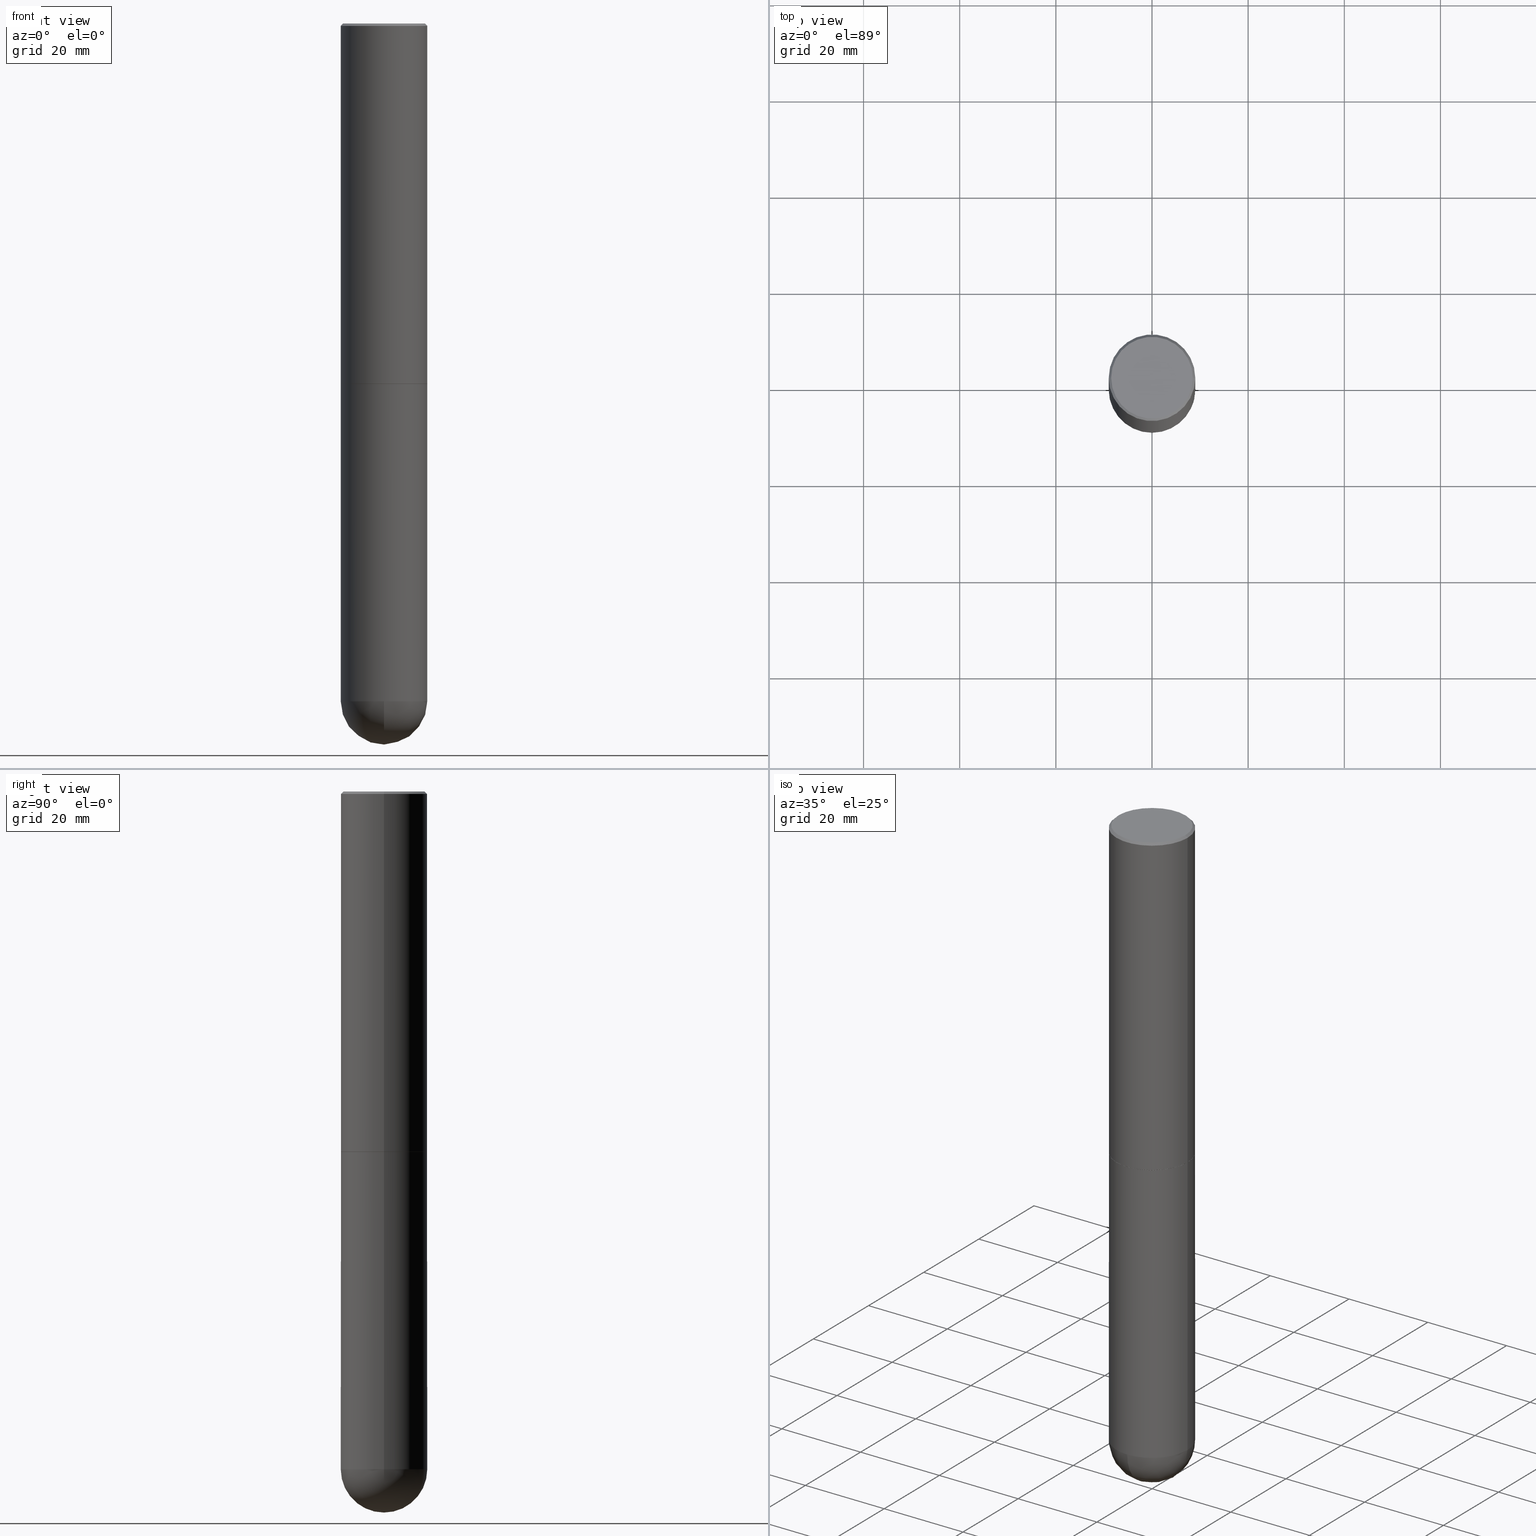
[diagram: canonical four-view strip — front | top / right | iso, engineering-drawing reading convention]
A machine part, canonical four-view strip (front | top / right | iso — engineering-drawing reading convention). The complete STEP part file that produces these views, byte-faithful:
ISO-10303-21;
HEADER;
FILE_DESCRIPTION (( 'STEP AP203' ),
    '1' );
FILE_NAME ('49606.STEP',
    '2024-04-10T12:30:01',
    ( '' ),
    ( '' ),
    'SwSTEP 2.0',
    'SolidWorks 2023',
    '' );
FILE_SCHEMA (( 'CONFIG_CONTROL_DESIGN' ));
ENDSEC;

DATA;
#1 = ORIENTED_EDGE ( 'NONE', *, *, #145, .T. ) ;
#2 = APPROVAL_STATUS ( 'not_yet_approved' ) ;
#3 = AXIS2_PLACEMENT_3D ( 'NONE', #348, #240, #249 ) ;
#4 = PERSON_AND_ORGANIZATION ( #169, #167 ) ;
#5 = ORIENTED_EDGE ( 'NONE', *, *, #222, .T. ) ;
#6 = CIRCLE ( 'NONE', #105, 0.3543499999999999983 ) ;
#7 = ADVANCED_FACE ( 'NONE', ( #298 ), #12, .T. ) ;
#8 = CIRCLE ( 'NONE', #152, 0.3543499999999999983 ) ;
#9 = CC_DESIGN_PERSON_AND_ORGANIZATION_ASSIGNMENT ( #135, #386, ( #326 ) ) ;
#10 = ORIENTED_EDGE ( 'NONE', *, *, #351, .F. ) ;
#11 = ORIENTED_EDGE ( 'NONE', *, *, #162, .T. ) ;
#12 = CONICAL_SURFACE ( 'NONE', #318, 0.3533499999999999974, 0.7853981633974824739 ) ;
#13 = VERTEX_POINT ( 'NONE', #363 ) ;
#14 = DIRECTION ( 'NONE',  ( -2.445468806185136597E-29, 3.491481338843145583E-15, 1.000000000000000000 ) ) ;
#15 = DIRECTION ( 'NONE',  ( -2.445468806185136597E-29, 3.491481338843145583E-15, 1.000000000000000000 ) ) ;
#16 = CARTESIAN_POINT ( 'NONE',  ( 0.3533499999999999974, -1.277672681136259888E-14, -2.952700000000000546 ) ) ;
#17 = CARTESIAN_POINT ( 'NONE',  ( -0.3533499999999999974, -7.793295738045619809E-15, -2.952700000000000546 ) ) ;
#18 = EDGE_CURVE ( 'NONE', #112, #49, #343, .T. ) ;
#19 = AXIS2_PLACEMENT_3D ( 'NONE', #258, #381, #225 ) ;
#20 = CIRCLE ( 'NONE', #19, 0.3543500000000002204 ) ;
#21 = DIRECTION ( 'NONE',  ( 6.982962677686265922E-15, 1.000000000000000000, -3.083784951222533328E-15 ) ) ;
#22 = EDGE_CURVE ( 'NONE', #230, #85, #356, .T. ) ;
#23 = CARTESIAN_POINT ( 'NONE',  ( 0.3343500000000000916, -2.397327298921059104E-15, -7.683322482179085543E-17 ) ) ;
#24 = DIRECTION ( 'NONE',  ( -2.445468806185136597E-29, 3.491481338843145583E-15, 1.000000000000000000 ) ) ;
#25 = CARTESIAN_POINT ( 'NONE',  ( -0.3543499999999999983, 2.404583198061265396E-15, -0.02000000000000008021 ) ) ;
#26 = EDGE_LOOP ( 'NONE', ( #362, #204 ) ) ;
#27 = APPLICATION_CONTEXT ( 'configuration controlled 3d designs of mechanical parts and assemblies' ) ;
#28 = DIRECTION ( 'NONE',  ( -2.445468806185136597E-29, 3.491481338843145583E-15, 1.000000000000000000 ) ) ;
#29 = EDGE_CURVE ( 'NONE', #263, #80, #273, .T. ) ;
#30 = DIRECTION ( 'NONE',  ( -1.000000000000000000, 6.982962677686265922E-15, -4.876176775795935793E-29 ) ) ;
#31 = EDGE_CURVE ( 'NONE', #49, #382, #62, .T. ) ;
#32 = PERSON_AND_ORGANIZATION ( #169, #167 ) ;
#33 = CARTESIAN_POINT ( 'NONE',  ( 2.474412824838200480E-15, 0.3543499999999896732, -2.952700000000000990 ) ) ;
#34 = APPROVAL_ROLE ( '' ) ;
#35 = CALENDAR_DATE ( 2024, 10, 4 ) ;
#36 = ORIENTED_EDGE ( 'NONE', *, *, #171, .T. ) ;
#37 = DATE_AND_TIME ( #35, #227 ) ;
#38 = AXIS2_PLACEMENT_3D ( 'NONE', #153, #308, #244 ) ;
#39 =( GEOMETRIC_REPRESENTATION_CONTEXT ( 3 ) GLOBAL_UNCERTAINTY_ASSIGNED_CONTEXT ( ( #132 ) ) GLOBAL_UNIT_ASSIGNED_CONTEXT ( ( #257, #189, #129 ) ) REPRESENTATION_CONTEXT ( 'NONE', 'WORKASPACE' ) );
#40 = ORIENTED_EDGE ( 'NONE', *, *, #385, .F. ) ;
#41 = PERSON_AND_ORGANIZATION_ROLE ( 'classification_officer' ) ;
#42 = APPLICATION_CONTEXT ( 'configuration controlled 3d designs of mechanical parts and assemblies' ) ;
#43 = PRODUCT ( '49606', '49606', '', ( #411 ) ) ;
#44 = ADVANCED_FACE ( 'NONE', ( #123 ), #224, .T. ) ;
#45 = CLOSED_SHELL ( 'NONE', ( #321, #47, #125, #279, #106, #7, #303, #190 ) ) ;
#46 = ORIENTED_EDGE ( 'NONE', *, *, #351, .T. ) ;
#47 = ADVANCED_FACE ( 'NONE', ( #221 ), #214, .T. ) ;
#48 = VERTEX_POINT ( 'NONE', #17 ) ;
#49 = VERTEX_POINT ( 'NONE', #187 ) ;
#50 = AXIS2_PLACEMENT_3D ( 'NONE', #117, #237, #335 ) ;
#51 = CYLINDRICAL_SURFACE ( 'NONE', #296, 0.3543499999999999983 ) ;
#52 = ORIENTED_EDGE ( 'NONE', *, *, #119, .T. ) ;
#53 = DIRECTION ( 'NONE',  ( -0.7071067811865461294, 2.468850131082242072E-15, -0.7071067811865489050 ) ) ;
#54 = CARTESIAN_POINT ( 'NONE',  ( 1.324404438554073486E-28, -1.985591900225917417E-14, -5.551149999999999807 ) ) ;
#55 = EDGE_CURVE ( 'NONE', #297, #188, #408, .T. ) ;
#56 = DIRECTION ( 'NONE',  ( 1.000000000000000000, -6.982962677686261189E-15, 0.000000000000000000 ) ) ;
#57 = DIRECTION ( 'NONE',  ( 1.000000000000000000, -6.982962677686266711E-15, 4.876176775795935793E-29 ) ) ;
#58 = CC_DESIGN_APPROVAL ( #63, ( #136 ) ) ;
#59 = DIRECTION ( 'NONE',  ( 1.000000000000000000, -6.982962677686266711E-15, 0.000000000000000000 ) ) ;
#60 = DIRECTION ( 'NONE',  ( -1.000000000000000000, 7.105427357601001070E-15, -4.926315508542082329E-29 ) ) ;
#61 = DIRECTION ( 'NONE',  ( 1.000000000000000000, -6.982962677686265922E-15, 0.000000000000000000 ) ) ;
#62 = LINE ( 'NONE', #89, #377 ) ;
#63 = APPROVAL ( #259, 'UNSPECIFIED' ) ;
#64 = PERSON_AND_ORGANIZATION ( #169, #167 ) ;
#65 = ORIENTED_EDGE ( 'NONE', *, *, #119, .F. ) ;
#66 = DIRECTION ( 'NONE',  ( -2.445468806185136877E-29, 3.491481338843145188E-15, 1.000000000000000000 ) ) ;
#67 = DIRECTION ( 'NONE',  ( -2.445468806185136597E-29, 3.491481338843145583E-15, 1.000000000000000000 ) ) ;
#68 = CONICAL_SURFACE ( 'NONE', #383, 0.3543499999999999983, 0.7853981633974463916 ) ;
#69 = CONICAL_SURFACE ( 'NONE', #389, 0.3533499999999999974, 0.7853981633974824739 ) ;
#70 = PERSON_AND_ORGANIZATION ( #169, #167 ) ;
#71 = CC_DESIGN_PERSON_AND_ORGANIZATION_ASSIGNMENT ( #166, #137, ( #326 ) ) ;
#72 = PERSON_AND_ORGANIZATION ( #169, #167 ) ;
#73 = EDGE_LOOP ( 'NONE', ( #360, #1, #142, #116 ) ) ;
#74 = AXIS2_PLACEMENT_3D ( 'NONE', #94, #274, #219 ) ;
#75 = CC_DESIGN_APPROVAL ( #410, ( #326 ) ) ;
#76 = CC_DESIGN_DATE_AND_TIME_ASSIGNMENT ( #104, #228, ( #139 ) ) ;
#77 = MANIFOLD_SOLID_BREP ( 'Body-Move/Copy2[1]', #392 ) ;
#78 = DIMENSIONAL_EXPONENTS ( 1.000000000000000000, 0.000000000000000000, 0.000000000000000000, 0.000000000000000000, 0.000000000000000000, 0.000000000000000000, 0.000000000000000000 ) ;
#79 = VECTOR ( 'NONE', #101, 39.37007874015748143 ) ;
#80 = VERTEX_POINT ( 'NONE', #23 ) ;
#81 = AXIS2_PLACEMENT_3D ( 'NONE', #370, #209, #400 ) ;
#82 = ORIENTED_EDGE ( 'NONE', *, *, #171, .F. ) ;
#83 = CARTESIAN_POINT ( 'NONE',  ( 1.357516416345461774E-28, -1.938173663411912545E-14, -5.551149999999999807 ) ) ;
#84 = FACE_OUTER_BOUND ( 'NONE', #302, .T. ) ;
#85 = VERTEX_POINT ( 'NONE', #380 ) ;
#86 = AXIS2_PLACEMENT_3D ( 'NONE', #403, #14, #124 ) ;
#87 = ADVANCED_FACE ( 'NONE', ( #409 ), #150, .F. ) ;
#88 = DIRECTION ( 'NONE',  ( -2.445468806185136597E-29, 3.491481338843145583E-15, 1.000000000000000000 ) ) ;
#89 = CARTESIAN_POINT ( 'NONE',  ( 0.3543499999999999983, -2.474412824838128694E-15, 1.727873240503289749E-29 ) ) ;
#90 = EDGE_CURVE ( 'NONE', #48, #211, #338, .T. ) ;
#91 = FACE_OUTER_BOUND ( 'NONE', #26, .T. ) ;
#92 = CYLINDRICAL_SURFACE ( 'NONE', #234, 0.3543500000000002204 ) ;
#93 = CARTESIAN_POINT ( 'NONE',  ( 7.220735744022853640E-29, -1.030929694920215659E-14, -2.952700000000000546 ) ) ;
#94 = CARTESIAN_POINT ( 'NONE',  ( 7.218290275216666916E-29, -1.030580546786331359E-14, -2.951700000000000212 ) ) ;
#95 = CC_DESIGN_APPROVAL ( #207, ( #139 ) ) ;
#96 = DIRECTION ( 'NONE',  ( -2.445468806185136597E-29, 3.491481338843145583E-15, 1.000000000000000000 ) ) ;
#97 = DIRECTION ( 'NONE',  ( -2.445468806185136597E-29, 3.491481338843145583E-15, 1.000000000000000000 ) ) ;
#98 = APPROVAL_DATE_TIME ( #247, #63 ) ;
#99 = ORIENTED_EDGE ( 'NONE', *, *, #174, .F. ) ;
#100 = PERSON_AND_ORGANIZATION_ROLE ( 'design_owner' ) ;
#101 = DIRECTION ( 'NONE',  ( -2.445468806185136877E-29, 3.491481338843145188E-15, 1.000000000000000000 ) ) ;
#102 = LINE ( 'NONE', #412, #388 ) ;
#103 = ORIENTED_EDGE ( 'NONE', *, *, #162, .F. ) ;
#104 = DATE_AND_TIME ( #223, #353 ) ;
#105 = AXIS2_PLACEMENT_3D ( 'NONE', #155, #120, #368 ) ;
#106 = ADVANCED_FACE ( 'NONE', ( #404 ), #92, .T. ) ;
#107 = AXIS2_PLACEMENT_3D ( 'NONE', #276, #301, #248 ) ;
#108 = CC_DESIGN_PERSON_AND_ORGANIZATION_ASSIGNMENT ( #357, #41, ( #136 ) ) ;
#109 = EDGE_LOOP ( 'NONE', ( #175, #285, #312, #65 ) ) ;
#110 = SECURITY_CLASSIFICATION_LEVEL ( 'unclassified' ) ;
#111 = ADVANCED_BREP_SHAPE_REPRESENTATION ( '49606', ( #77, #206, #143 ), #39 ) ;
#112 = VERTEX_POINT ( 'NONE', #161 ) ;
#113 = APPROVAL_PERSON_ORGANIZATION ( #64, #63, #350 ) ;
#114 = ORIENTED_EDGE ( 'NONE', *, *, #18, .T. ) ;
#115 = CIRCLE ( 'NONE', #253, 0.3533499999999999974 ) ;
#116 = ORIENTED_EDGE ( 'NONE', *, *, #55, .F. ) ;
#117 = CARTESIAN_POINT ( 'NONE',  ( 4.890937612370293302E-31, -6.982962677686318726E-17, -0.02000000000000008021 ) ) ;
#118 = ORIENTED_EDGE ( 'NONE', *, *, #287, .T. ) ;
#119 = EDGE_CURVE ( 'NONE', #211, #85, #333, .T. ) ;
#120 = DIRECTION ( 'NONE',  ( -2.445468806185136597E-29, 3.491481338843145583E-15, 1.000000000000000000 ) ) ;
#121 = CARTESIAN_POINT ( 'NONE',  ( -0.3543499999999999428, -1.232770860749472642E-14, -5.551149999999999807 ) ) ;
#122 = CARTESIAN_POINT ( 'NONE',  ( 1.357516416345461774E-28, -1.938173663411912545E-14, -5.551149999999999807 ) ) ;
#123 = FACE_OUTER_BOUND ( 'NONE', #265, .T. ) ;
#124 = DIRECTION ( 'NONE',  ( 1.000000000000000000, -6.982962677686268288E-15, 0.000000000000000000 ) ) ;
#125 = ADVANCED_FACE ( 'NONE', ( #314 ), #68, .T. ) ;
#126 = CARTESIAN_POINT ( 'NONE',  ( 0.000000000000000000, 0.000000000000000000, 0.000000000000000000 ) ) ;
#127 = DIRECTION ( 'NONE',  ( 1.000000000000000000, -6.982962677686267499E-15, 4.875777752381876907E-29 ) ) ;
#128 = CARTESIAN_POINT ( 'NONE',  ( 4.890937612370293302E-31, -6.982962677686318726E-17, -0.02000000000000008021 ) ) ;
#129 =( NAMED_UNIT ( * ) SI_UNIT ( $, .STERADIAN. ) SOLID_ANGLE_UNIT ( ) );
#130 = LINE ( 'NONE', #311, #79 ) ;
#131 = APPLICATION_PROTOCOL_DEFINITION ( 'international standard', 'config_control_design', 1994, #42 ) ;
#132 = UNCERTAINTY_MEASURE_WITH_UNIT (LENGTH_MEASURE( 1.000000000000000082E-05 ), #257, 'distance_accuracy_value', 'NONE');
#133 = DIRECTION ( 'NONE',  ( -1.000000000000000000, 6.982962677686265922E-15, -4.876176775795935793E-29 ) ) ;
#134 = COORDINATED_UNIVERSAL_TIME_OFFSET ( 5, 0, .BEHIND. ) ;
#135 = PERSON_AND_ORGANIZATION ( #169, #167 ) ;
#136 = SECURITY_CLASSIFICATION ( '', '', #110 ) ;
#137 = PERSON_AND_ORGANIZATION_ROLE ( 'design_supplier' ) ;
#138 = ORIENTED_EDGE ( 'NONE', *, *, #385, .T. ) ;
#139 = PRODUCT_DEFINITION ( 'UNKNOWN', '', #326, #283 ) ;
#140 = VECTOR ( 'NONE', #154, 39.37007874015748143 ) ;
#141 = ORIENTED_EDGE ( 'NONE', *, *, #334, .T. ) ;
#142 = ORIENTED_EDGE ( 'NONE', *, *, #287, .F. ) ;
#143 = AXIS2_PLACEMENT_3D ( 'NONE', #328, #354, #291 ) ;
#144 = VERTEX_POINT ( 'NONE', #216 ) ;
#145 = EDGE_CURVE ( 'NONE', #13, #112, #295, .T. ) ;
#146 = CC_DESIGN_PERSON_AND_ORGANIZATION_ASSIGNMENT ( #72, #100, ( #43 ) ) ;
#147 = CARTESIAN_POINT ( 'NONE',  ( 7.220735744022853640E-29, -1.030929694920215659E-14, -2.952700000000000546 ) ) ;
#148 = ORIENTED_EDGE ( 'NONE', *, *, #55, .T. ) ;
#149 = DIRECTION ( 'NONE',  ( -2.438088387897960049E-29, 3.491481338843145188E-15, 1.000000000000000000 ) ) ;
#150 = PLANE ( 'NONE',  #151 ) ;
#151 = AXIS2_PLACEMENT_3D ( 'NONE', #33, #282, #30 ) ;
#152 = AXIS2_PLACEMENT_3D ( 'NONE', #183, #347, #61 ) ;
#153 = CARTESIAN_POINT ( 'NONE',  ( 1.357516416345461774E-28, -1.938173663411912545E-14, -5.551149999999999807 ) ) ;
#154 = DIRECTION ( 'NONE',  ( -2.445468806185136877E-29, 3.491481338843145188E-15, 1.000000000000000000 ) ) ;
#155 = CARTESIAN_POINT ( 'NONE',  ( 7.220735744022852519E-29, -1.030929694920215502E-14, -2.952700000000000102 ) ) ;
#156 = CARTESIAN_POINT ( 'NONE',  ( 0.3543499999999999983, -2.500847092287205690E-15, -0.02000000000000008021 ) ) ;
#157 = AXIS2_PLACEMENT_3D ( 'NONE', #406, #378, #133 ) ;
#158 = ORIENTED_EDGE ( 'NONE', *, *, #293, .T. ) ;
#159 = AXIS2_PLACEMENT_3D ( 'NONE', #310, #24, #127 ) ;
#160 = LENGTH_MEASURE_WITH_UNIT ( LENGTH_MEASURE( 0.02539999999999999897 ), #320 );
#161 = CARTESIAN_POINT ( 'NONE',  ( -2.517808184165781285E-15, -0.3543500000000196493, -5.551149999999998919 ) ) ;
#162 = EDGE_CURVE ( 'NONE', #80, #144, #191, .T. ) ;
#163 = COORDINATED_UNIVERSAL_TIME_OFFSET ( 5, 0, .BEHIND. ) ;
#164 = APPROVAL_DATE_TIME ( #37, #410 ) ;
#165 = AXIS2_PLACEMENT_3D ( 'NONE', #246, #97, #305 ) ;
#166 = PERSON_AND_ORGANIZATION ( #169, #167 ) ;
#167 = ORGANIZATION ( 'UNSPECIFIED', 'UNSPECIFIED', '' ) ;
#168 = DIRECTION ( 'NONE',  ( 0.7071067811865715536, -2.468850131082509496E-15, 0.7071067811865232589 ) ) ;
#169 = PERSON ( 'UNSPECIFIED', 'UNSPECIFIED', 'UNSPECIFIED', ('UNSPECIFIED'), ('UNSPECIFIED'), ('UNSPECIFIED') ) ;
#170 = APPROVAL_PERSON_ORGANIZATION ( #32, #207, #34 ) ;
#171 = EDGE_CURVE ( 'NONE', #188, #185, #130, .T. ) ;
#172 = VERTEX_POINT ( 'NONE', #25 ) ;
#173 = ORIENTED_EDGE ( 'NONE', *, *, #395, .F. ) ;
#174 = EDGE_CURVE ( 'NONE', #85, #144, #317, .T. ) ;
#175 = ORIENTED_EDGE ( 'NONE', *, *, #90, .F. ) ;
#176 = FACE_OUTER_BOUND ( 'NONE', #300, .T. ) ;
#177 = ORIENTED_EDGE ( 'NONE', *, *, #29, .T. ) ;
#178 = CARTESIAN_POINT ( 'NONE',  ( -0.3543500000000004424, -2.670009363154166740E-15, -2.951700000000000212 ) ) ;
#179 = CARTESIAN_POINT ( 'NONE',  ( 0.000000000000000000, 0.000000000000000000, 0.000000000000000000 ) ) ;
#180 = DIRECTION ( 'NONE',  ( 1.000000000000000000, -6.982962677686265922E-15, 4.876176775795935793E-29 ) ) ;
#181 = CARTESIAN_POINT ( 'NONE',  ( 0.3543500000000002204, -2.474412824838130272E-15, 1.727873240503290870E-29 ) ) ;
#182 = LOCAL_TIME ( 8, 30, 1.000000000000000000, #163 ) ;
#183 = CARTESIAN_POINT ( 'NONE',  ( 7.220735744022852519E-29, -1.030929694920215502E-14, -2.952700000000000102 ) ) ;
#184 = DIRECTION ( 'NONE',  ( -7.105427357601001070E-15, -1.000000000000000000, 0.000000000000000000 ) ) ;
#185 = VERTEX_POINT ( 'NONE', #284 ) ;
#186 = FACE_OUTER_BOUND ( 'NONE', #73, .T. ) ;
#187 = CARTESIAN_POINT ( 'NONE',  ( 0.3543499999999999428, -1.731992961649876932E-14, -5.551149999999999807 ) ) ;
#188 = VERTEX_POINT ( 'NONE', #121 ) ;
#189 =( NAMED_UNIT ( * ) PLANE_ANGLE_UNIT ( ) SI_UNIT ( $, .RADIAN. ) );
#190 = ADVANCED_FACE ( 'NONE', ( #369 ), #280, .F. ) ;
#191 = LINE ( 'NONE', #156, #210 ) ;
#192 = AXIS2_PLACEMENT_3D ( 'NONE', #126, #255, #277 ) ;
#193 = CIRCLE ( 'NONE', #358, 0.3543499999999999428 ) ;
#194 = CARTESIAN_POINT ( 'NONE',  ( -0.3543500000000002204, 2.517808184165916574E-15, -1.743024649231827187E-29 ) ) ;
#195 = ORIENTED_EDGE ( 'NONE', *, *, #29, .F. ) ;
#196 = APPROVAL_STATUS ( 'not_yet_approved' ) ;
#197 = EDGE_CURVE ( 'NONE', #13, #297, #20, .T. ) ;
#198 = ORIENTED_EDGE ( 'NONE', *, *, #202, .F. ) ;
#199 = CALENDAR_DATE ( 2024, 10, 4 ) ;
#200 = ORIENTED_EDGE ( 'NONE', *, *, #242, .T. ) ;
#201 = CONICAL_SURFACE ( 'NONE', #81, 0.3543499999999999983, 0.7853981633974463916 ) ;
#202 = EDGE_CURVE ( 'NONE', #263, #172, #102, .T. ) ;
#203 = LOCAL_TIME ( 8, 30, 1.000000000000000000, #281 ) ;
#204 = ORIENTED_EDGE ( 'NONE', *, *, #390, .F. ) ;
#205 = EDGE_LOOP ( 'NONE', ( #177, #158 ) ) ;
#206 = MANIFOLD_SOLID_BREP ( 'Body-Move/Copy2[2]', #45 ) ;
#207 = APPROVAL ( #2, 'UNSPECIFIED' ) ;
#208 = DIRECTION ( 'NONE',  ( -2.445468806185136597E-29, 3.491481338843145583E-15, 1.000000000000000000 ) ) ;
#209 = DIRECTION ( 'NONE',  ( 2.445468806185136597E-29, -3.491481338843145583E-15, -1.000000000000000000 ) ) ;
#210 = VECTOR ( 'NONE', #402, 39.37007874015748143 ) ;
#211 = VERTEX_POINT ( 'NONE', #178 ) ;
#212 = CIRCLE ( 'NONE', #50, 0.3543499999999999983 ) ;
#213 = FACE_OUTER_BOUND ( 'NONE', #330, .T. ) ;
#214 = CYLINDRICAL_SURFACE ( 'NONE', #192, 0.3543500000000002204 ) ;
#215 = CARTESIAN_POINT ( 'NONE',  ( 1.324404438554073486E-28, -1.985591900225917417E-14, -5.551149999999999807 ) ) ;
#216 = CARTESIAN_POINT ( 'NONE',  ( 0.3543499999999999983, -2.500847092287205690E-15, -0.02000000000000008021 ) ) ;
#217 = EDGE_CURVE ( 'NONE', #230, #48, #352, .T. ) ;
#218 = PLANE ( 'NONE',  #361 ) ;
#219 = DIRECTION ( 'NONE',  ( 1.000000000000000000, -6.982962677686268288E-15, 0.000000000000000000 ) ) ;
#220 = DIRECTION ( 'NONE',  ( 1.000000000000000000, -6.982962677686267499E-15, 0.000000000000000000 ) ) ;
#221 = FACE_OUTER_BOUND ( 'NONE', #336, .T. ) ;
#222 = EDGE_CURVE ( 'NONE', #382, #185, #6, .T. ) ;
#223 = CALENDAR_DATE ( 2024, 10, 4 ) ;
#224 = CYLINDRICAL_SURFACE ( 'NONE', #165, 0.3543499999999999983 ) ;
#225 = DIRECTION ( 'NONE',  ( 6.982962677686265133E-15, 1.000000000000000000, 0.000000000000000000 ) ) ;
#226 = EDGE_LOOP ( 'NONE', ( #238, #11, #138, #198 ) ) ;
#227 = LOCAL_TIME ( 8, 30, 1.000000000000000000, #322 ) ;
#228 = DATE_TIME_ROLE ( 'creation_date' ) ;
#229 = PERSON_AND_ORGANIZATION_ROLE ( 'creator' ) ;
#230 = VERTEX_POINT ( 'NONE', #16 ) ;
#231 = PRODUCT_RELATED_PRODUCT_CATEGORY ( 'detail', '', ( #43 ) ) ;
#232 = DATE_AND_TIME ( #199, #182 ) ;
#233 = EDGE_LOOP ( 'NONE', ( #5, #394 ) ) ;
#234 = AXIS2_PLACEMENT_3D ( 'NONE', #179, #67, #57 ) ;
#235 = ORIENTED_EDGE ( 'NONE', *, *, #90, .T. ) ;
#236 = ORIENTED_EDGE ( 'NONE', *, *, #18, .F. ) ;
#237 = DIRECTION ( 'NONE',  ( -2.445468806185136597E-29, 3.491481338843145583E-15, 1.000000000000000000 ) ) ;
#238 = ORIENTED_EDGE ( 'NONE', *, *, #293, .F. ) ;
#239 = DIRECTION ( 'NONE',  ( 1.000000000000000000, -6.982962677686267499E-15, 0.000000000000000000 ) ) ;
#240 = DIRECTION ( 'NONE',  ( -2.445468806185136597E-29, 3.491481338843145583E-15, 1.000000000000000000 ) ) ;
#241 = CIRCLE ( 'NONE', #159, 0.3343500000000000916 ) ;
#242 = EDGE_CURVE ( 'NONE', #49, #297, #262, .T. ) ;
#243 = SPHERICAL_SURFACE ( 'NONE', #261, 0.3543500000000002204 ) ;
#244 = DIRECTION ( 'NONE',  ( 1.000000000000000000, -6.982962677686261189E-15, 0.000000000000000000 ) ) ;
#245 = DIRECTION ( 'NONE',  ( 1.000000000000000000, -6.982962677686261189E-15, 0.000000000000000000 ) ) ;
#246 = CARTESIAN_POINT ( 'NONE',  ( 0.000000000000000000, 0.000000000000000000, 0.000000000000000000 ) ) ;
#247 = DATE_AND_TIME ( #256, #267 ) ;
#248 = DIRECTION ( 'NONE',  ( 6.982962677686265922E-15, 1.000000000000000000, -3.083784951222533328E-15 ) ) ;
#249 = DIRECTION ( 'NONE',  ( 1.000000000000000000, -6.982962677686267499E-15, 4.875777752381876907E-29 ) ) ;
#250 = DATE_TIME_ROLE ( 'classification_date' ) ;
#251 = VECTOR ( 'NONE', #345, 39.37007874015748854 ) ;
#252 = ADVANCED_FACE ( 'NONE', ( #186 ), #243, .T. ) ;
#253 = AXIS2_PLACEMENT_3D ( 'NONE', #147, #254, #286 ) ;
#254 = DIRECTION ( 'NONE',  ( -2.445468806185136597E-29, 3.491481338843145583E-15, 1.000000000000000000 ) ) ;
#255 = DIRECTION ( 'NONE',  ( -2.445468806185136597E-29, 3.491481338843145583E-15, 1.000000000000000000 ) ) ;
#256 = CALENDAR_DATE ( 2024, 10, 4 ) ;
#257 =( CONVERSION_BASED_UNIT ( 'INCH', #160 ) LENGTH_UNIT ( ) NAMED_UNIT ( #78 ) );
#258 = CARTESIAN_POINT ( 'NONE',  ( 1.324404438554073486E-28, -1.985591900225917417E-14, -5.551149999999999807 ) ) ;
#259 = APPROVAL_STATUS ( 'not_yet_approved' ) ;
#260 = LINE ( 'NONE', #194, #319 ) ;
#261 = AXIS2_PLACEMENT_3D ( 'NONE', #215, #339, #21 ) ;
#262 = CIRCLE ( 'NONE', #307, 0.3543499999999999428 ) ;
#263 = VERTEX_POINT ( 'NONE', #405 ) ;
#264 = CC_DESIGN_DATE_AND_TIME_ASSIGNMENT ( #341, #250, ( #136 ) ) ;
#265 = EDGE_LOOP ( 'NONE', ( #82, #118, #114, #331, #397 ) ) ;
#266 = ORIENTED_EDGE ( 'NONE', *, *, #242, .F. ) ;
#267 = LOCAL_TIME ( 8, 30, 1.000000000000000000, #372 ) ;
#268 = ORIENTED_EDGE ( 'NONE', *, *, #22, .F. ) ;
#269 = ORIENTED_EDGE ( 'NONE', *, *, #145, .F. ) ;
#270 = CARTESIAN_POINT ( 'NONE',  ( 0.3543499999999999983, -1.278370977404028332E-14, -2.952700000000000102 ) ) ;
#271 = CARTESIAN_POINT ( 'NONE',  ( 7.220735744022853640E-29, -1.030929694920215659E-14, -2.952700000000000546 ) ) ;
#272 = SPHERICAL_SURFACE ( 'NONE', #107, 0.3543500000000002204 ) ;
#273 = CIRCLE ( 'NONE', #3, 0.3343500000000000916 ) ;
#274 = DIRECTION ( 'NONE',  ( -2.445468806185136597E-29, 3.491481338843145583E-15, 1.000000000000000000 ) ) ;
#275 = CIRCLE ( 'NONE', #86, 0.3543500000000004424 ) ;
#276 = CARTESIAN_POINT ( 'NONE',  ( 1.324404438554073486E-28, -1.985591900225917417E-14, -5.551149999999999807 ) ) ;
#277 = DIRECTION ( 'NONE',  ( 1.000000000000000000, -6.982962677686266711E-15, 4.876176775795935793E-29 ) ) ;
#278 = DIRECTION ( 'NONE',  ( -2.445468806185136597E-29, 3.491481338843145583E-15, 1.000000000000000000 ) ) ;
#279 = ADVANCED_FACE ( 'NONE', ( #304 ), #201, .T. ) ;
#280 = PLANE ( 'NONE',  #157 ) ;
#281 = COORDINATED_UNIVERSAL_TIME_OFFSET ( 5, 0, .BEHIND. ) ;
#282 = DIRECTION ( 'NONE',  ( 2.438088387897960049E-29, -3.491481338843145188E-15, -1.000000000000000000 ) ) ;
#283 = DESIGN_CONTEXT ( 'detailed design', #42, 'design' ) ;
#284 = CARTESIAN_POINT ( 'NONE',  ( -0.3543499999999999983, -1.232770860749472484E-14, -2.952700000000000102 ) ) ;
#285 = ORIENTED_EDGE ( 'NONE', *, *, #390, .T. ) ;
#286 = DIRECTION ( 'NONE',  ( 1.000000000000000000, -6.982962677686267499E-15, 0.000000000000000000 ) ) ;
#287 = EDGE_CURVE ( 'NONE', #188, #112, #193, .T. ) ;
#288 = APPROVAL_DATE_TIME ( #232, #207 ) ;
#289 = AXIS2_PLACEMENT_3D ( 'NONE', #83, #208, #399 ) ;
#290 = CC_DESIGN_SECURITY_CLASSIFICATION ( #136, ( #326 ) ) ;
#291 = DIRECTION ( 'NONE',  ( 1.000000000000000000, 0.000000000000000000, 0.000000000000000000 ) ) ;
#292 = ORIENTED_EDGE ( 'NONE', *, *, #174, .T. ) ;
#293 = EDGE_CURVE ( 'NONE', #80, #263, #241, .T. ) ;
#294 = CC_DESIGN_PERSON_AND_ORGANIZATION_ASSIGNMENT ( #4, #229, ( #139 ) ) ;
#295 = CIRCLE ( 'NONE', #299, 0.3543500000000002204 ) ;
#296 = AXIS2_PLACEMENT_3D ( 'NONE', #313, #28, #396 ) ;
#297 = VERTEX_POINT ( 'NONE', #365 ) ;
#298 = FACE_OUTER_BOUND ( 'NONE', #109, .T. ) ;
#299 = AXIS2_PLACEMENT_3D ( 'NONE', #54, #60, #184 ) ;
#300 = EDGE_LOOP ( 'NONE', ( #269, #366, #266, #236 ) ) ;
#301 = DIRECTION ( 'NONE',  ( -1.000000000000000000, 6.982962677686265922E-15, -4.883557194083112340E-29 ) ) ;
#302 = EDGE_LOOP ( 'NONE', ( #148, #36, #384, #315, #200 ) ) ;
#303 = ADVANCED_FACE ( 'NONE', ( #91 ), #218, .F. ) ;
#304 = FACE_OUTER_BOUND ( 'NONE', #346, .T. ) ;
#305 = DIRECTION ( 'NONE',  ( 1.000000000000000000, -6.982962677686266711E-15, 4.876176775795935793E-29 ) ) ;
#306 = CARTESIAN_POINT ( 'NONE',  ( 7.220735744022853640E-29, -1.030929694920215659E-14, -2.952700000000000546 ) ) ;
#307 = AXIS2_PLACEMENT_3D ( 'NONE', #398, #337, #245 ) ;
#308 = DIRECTION ( 'NONE',  ( -2.445468806185136597E-29, 3.491481338843145583E-15, 1.000000000000000000 ) ) ;
#309 = ADVANCED_FACE ( 'NONE', ( #176 ), #272, .T. ) ;
#310 = CARTESIAN_POINT ( 'NONE',  ( 1.878932545803395481E-45, -2.682617706684804906E-31, -7.683322482180740918E-17 ) ) ;
#311 = CARTESIAN_POINT ( 'NONE',  ( -0.3543499999999999983, 2.517808184165914997E-15, -1.743024649231826066E-29 ) ) ;
#312 = ORIENTED_EDGE ( 'NONE', *, *, #22, .T. ) ;
#313 = CARTESIAN_POINT ( 'NONE',  ( 0.000000000000000000, 0.000000000000000000, 0.000000000000000000 ) ) ;
#314 = FACE_OUTER_BOUND ( 'NONE', #226, .T. ) ;
#315 = ORIENTED_EDGE ( 'NONE', *, *, #31, .F. ) ;
#316 = APPLICATION_PROTOCOL_DEFINITION ( 'international standard', 'config_control_design', 1994, #27 ) ;
#317 = LINE ( 'NONE', #181, #140 ) ;
#318 = AXIS2_PLACEMENT_3D ( 'NONE', #271, #15, #332 ) ;
#319 = VECTOR ( 'NONE', #66, 39.37007874015748143 ) ;
#320 =( LENGTH_UNIT ( ) NAMED_UNIT ( * ) SI_UNIT ( $, .METRE. ) );
#321 = ADVANCED_FACE ( 'NONE', ( #213 ), #69, .T. ) ;
#322 = COORDINATED_UNIVERSAL_TIME_OFFSET ( 5, 0, .BEHIND. ) ;
#323 = PRODUCT_DEFINITION_SHAPE ( 'NONE', 'NONE',  #139 ) ;
#324 = ORIENTED_EDGE ( 'NONE', *, *, #202, .T. ) ;
#325 = APPROVAL_ROLE ( '' ) ;
#326 = PRODUCT_DEFINITION_FORMATION_WITH_SPECIFIED_SOURCE ( 'ANY', '', #43, .NOT_KNOWN. ) ;
#327 = CARTESIAN_POINT ( 'NONE',  ( 0.3533499999999999974, -1.277672681136259888E-14, -2.952700000000000546 ) ) ;
#328 = CARTESIAN_POINT ( 'NONE',  ( 0.000000000000000000, 0.000000000000000000, 0.000000000000000000 ) ) ;
#329 = VECTOR ( 'NONE', #168, 39.37007874015748854 ) ;
#330 = EDGE_LOOP ( 'NONE', ( #391, #235, #379, #268 ) ) ;
#331 = ORIENTED_EDGE ( 'NONE', *, *, #31, .T. ) ;
#332 = DIRECTION ( 'NONE',  ( 1.000000000000000000, -6.982962677686267499E-15, 0.000000000000000000 ) ) ;
#333 = CIRCLE ( 'NONE', #74, 0.3543500000000004424 ) ;
#334 = EDGE_CURVE ( 'NONE', #85, #211, #275, .T. ) ;
#335 = DIRECTION ( 'NONE',  ( 1.000000000000000000, -6.982962677686266711E-15, 0.000000000000000000 ) ) ;
#336 = EDGE_LOOP ( 'NONE', ( #141, #355, #40, #99 ) ) ;
#337 = DIRECTION ( 'NONE',  ( -2.445468806185136597E-29, 3.491481338843145583E-15, 1.000000000000000000 ) ) ;
#338 = LINE ( 'NONE', #371, #251 ) ;
#339 = DIRECTION ( 'NONE',  ( -1.000000000000000000, 6.982962677686265922E-15, -4.883557194083112340E-29 ) ) ;
#340 = DIRECTION ( 'NONE',  ( -2.445468806185136877E-29, 3.491481338843145188E-15, 1.000000000000000000 ) ) ;
#341 = DATE_AND_TIME ( #407, #203 ) ;
#342 = DIRECTION ( 'NONE',  ( -2.445468806185136597E-29, 3.491481338843145583E-15, 1.000000000000000000 ) ) ;
#343 = CIRCLE ( 'NONE', #289, 0.3543499999999999428 ) ;
#344 = AXIS2_PLACEMENT_3D ( 'NONE', #373, #342, #59 ) ;
#345 = DIRECTION ( 'NONE',  ( -0.7071067811865715536, 7.493145998870439357E-15, 0.7071067811865232589 ) ) ;
#346 = EDGE_LOOP ( 'NONE', ( #103, #195, #324, #46 ) ) ;
#347 = DIRECTION ( 'NONE',  ( -2.445468806185136597E-29, 3.491481338843145583E-15, 1.000000000000000000 ) ) ;
#348 = CARTESIAN_POINT ( 'NONE',  ( 1.878932545803395481E-45, -2.682617706684804906E-31, -7.683322482180740918E-17 ) ) ;
#349 = DIRECTION ( 'NONE',  ( 2.445468806185136597E-29, -3.491481338843145583E-15, -1.000000000000000000 ) ) ;
#350 = APPROVAL_ROLE ( '' ) ;
#351 = EDGE_CURVE ( 'NONE', #172, #144, #393, .T. ) ;
#352 = CIRCLE ( 'NONE', #367, 0.3533499999999999974 ) ;
#353 = LOCAL_TIME ( 8, 30, 1.000000000000000000, #134 ) ;
#354 = DIRECTION ( 'NONE',  ( 0.000000000000000000, 0.000000000000000000, 1.000000000000000000 ) ) ;
#355 = ORIENTED_EDGE ( 'NONE', *, *, #395, .T. ) ;
#356 = LINE ( 'NONE', #327, #329 ) ;
#357 = PERSON_AND_ORGANIZATION ( #169, #167 ) ;
#358 = AXIS2_PLACEMENT_3D ( 'NONE', #122, #88, #56 ) ;
#359 = EDGE_CURVE ( 'NONE', #185, #382, #8, .T. ) ;
#360 = ORIENTED_EDGE ( 'NONE', *, *, #197, .F. ) ;
#361 = AXIS2_PLACEMENT_3D ( 'NONE', #93, #149, #180 ) ;
#362 = ORIENTED_EDGE ( 'NONE', *, *, #217, .F. ) ;
#363 = CARTESIAN_POINT ( 'NONE',  ( 1.412574766574097249E-28, -2.107142773501435227E-14, -5.905499999999999972 ) ) ;
#364 = ADVANCED_FACE ( 'NONE', ( #84 ), #51, .T. ) ;
#365 = CARTESIAN_POINT ( 'NONE',  ( 2.474412824838263195E-15, 0.3543499999999804584, -5.551150000000000695 ) ) ;
#366 = ORIENTED_EDGE ( 'NONE', *, *, #197, .T. ) ;
#367 = AXIS2_PLACEMENT_3D ( 'NONE', #306, #278, #239 ) ;
#368 = DIRECTION ( 'NONE',  ( 1.000000000000000000, -6.982962677686265922E-15, 0.000000000000000000 ) ) ;
#369 = FACE_OUTER_BOUND ( 'NONE', #205, .T. ) ;
#370 = CARTESIAN_POINT ( 'NONE',  ( 4.890937612370293302E-31, -6.982962677686318726E-17, -0.02000000000000008021 ) ) ;
#371 = CARTESIAN_POINT ( 'NONE',  ( -0.3533499999999999974, -7.798594192393843789E-15, -2.952700000000000546 ) ) ;
#372 = COORDINATED_UNIVERSAL_TIME_OFFSET ( 5, 0, .BEHIND. ) ;
#373 = CARTESIAN_POINT ( 'NONE',  ( 4.890937612370293302E-31, -6.982962677686318726E-17, -0.02000000000000008021 ) ) ;
#374 = DIRECTION ( 'NONE',  ( -1.000000000000000000, 6.982962677686266711E-15, 0.000000000000000000 ) ) ;
#375 = SHAPE_DEFINITION_REPRESENTATION ( #323, #111 ) ;
#376 = CARTESIAN_POINT ( 'NONE',  ( 7.220735744022853640E-29, -1.030929694920215659E-14, -2.952700000000000546 ) ) ;
#377 = VECTOR ( 'NONE', #340, 39.37007874015748143 ) ;
#378 = DIRECTION ( 'NONE',  ( 2.438088387897960049E-29, -3.491481338843145188E-15, -1.000000000000000000 ) ) ;
#379 = ORIENTED_EDGE ( 'NONE', *, *, #334, .F. ) ;
#380 = CARTESIAN_POINT ( 'NONE',  ( 0.3543500000000004424, -1.278021829270144662E-14, -2.951700000000000212 ) ) ;
#381 = DIRECTION ( 'NONE',  ( 1.000000000000000000, -6.982962677686265922E-15, 4.883557194083112340E-29 ) ) ;
#382 = VERTEX_POINT ( 'NONE', #270 ) ;
#383 = AXIS2_PLACEMENT_3D ( 'NONE', #128, #349, #374 ) ;
#384 = ORIENTED_EDGE ( 'NONE', *, *, #222, .F. ) ;
#385 = EDGE_CURVE ( 'NONE', #144, #172, #212, .T. ) ;
#386 = PERSON_AND_ORGANIZATION_ROLE ( 'creator' ) ;
#387 = EDGE_LOOP ( 'NONE', ( #173, #52, #292, #10 ) ) ;
#388 = VECTOR ( 'NONE', #53, 39.37007874015748143 ) ;
#389 = AXIS2_PLACEMENT_3D ( 'NONE', #376, #96, #220 ) ;
#390 = EDGE_CURVE ( 'NONE', #48, #230, #115, .T. ) ;
#391 = ORIENTED_EDGE ( 'NONE', *, *, #217, .T. ) ;
#392 = CLOSED_SHELL ( 'NONE', ( #364, #252, #309, #87, #44 ) ) ;
#393 = CIRCLE ( 'NONE', #344, 0.3543499999999999983 ) ;
#394 = ORIENTED_EDGE ( 'NONE', *, *, #359, .T. ) ;
#395 = EDGE_CURVE ( 'NONE', #211, #172, #260, .T. ) ;
#396 = DIRECTION ( 'NONE',  ( 1.000000000000000000, -6.982962677686266711E-15, 4.876176775795935793E-29 ) ) ;
#397 = ORIENTED_EDGE ( 'NONE', *, *, #359, .F. ) ;
#398 = CARTESIAN_POINT ( 'NONE',  ( 1.357516416345461774E-28, -1.938173663411912545E-14, -5.551149999999999807 ) ) ;
#399 = DIRECTION ( 'NONE',  ( 1.000000000000000000, -6.982962677686261189E-15, 0.000000000000000000 ) ) ;
#400 = DIRECTION ( 'NONE',  ( -1.000000000000000000, 6.982962677686266711E-15, 0.000000000000000000 ) ) ;
#401 = APPROVAL_PERSON_ORGANIZATION ( #70, #410, #325 ) ;
#402 = DIRECTION ( 'NONE',  ( 0.7071067811865461294, -7.319954787623251312E-15, -0.7071067811865489050 ) ) ;
#403 = CARTESIAN_POINT ( 'NONE',  ( 7.218290275216666916E-29, -1.030580546786331359E-14, -2.951700000000000212 ) ) ;
#404 = FACE_OUTER_BOUND ( 'NONE', #387, .T. ) ;
#405 = CARTESIAN_POINT ( 'NONE',  ( -0.3343500000000000916, 2.369668384672834141E-15, -7.683322482182385200E-17 ) ) ;
#406 = CARTESIAN_POINT ( 'NONE',  ( 2.334753571284403675E-15, 0.3343500000000000916, -1.205793398053109819E-15 ) ) ;
#407 = CALENDAR_DATE ( 2024, 10, 4 ) ;
#408 = CIRCLE ( 'NONE', #38, 0.3543499999999999428 ) ;
#409 = FACE_OUTER_BOUND ( 'NONE', #233, .T. ) ;
#410 = APPROVAL ( #196, 'UNSPECIFIED' ) ;
#411 = MECHANICAL_CONTEXT ( 'NONE', #27, 'mechanical' ) ;
#412 = CARTESIAN_POINT ( 'NONE',  ( -0.3543499999999999983, 2.404583198061265396E-15, -0.02000000000000008021 ) ) ;
ENDSEC;
END-ISO-10303-21;
